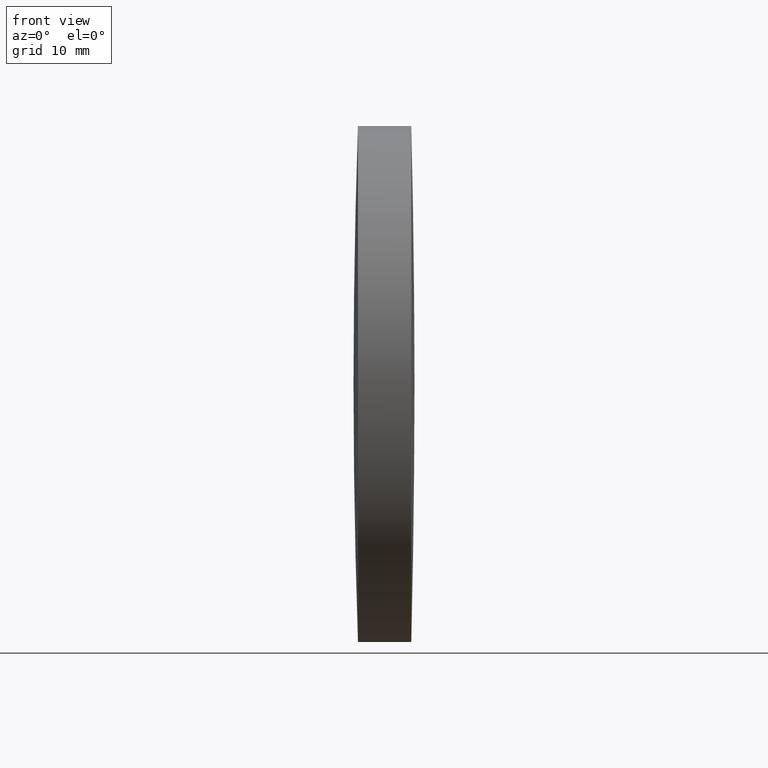
[diagram: clean part render]
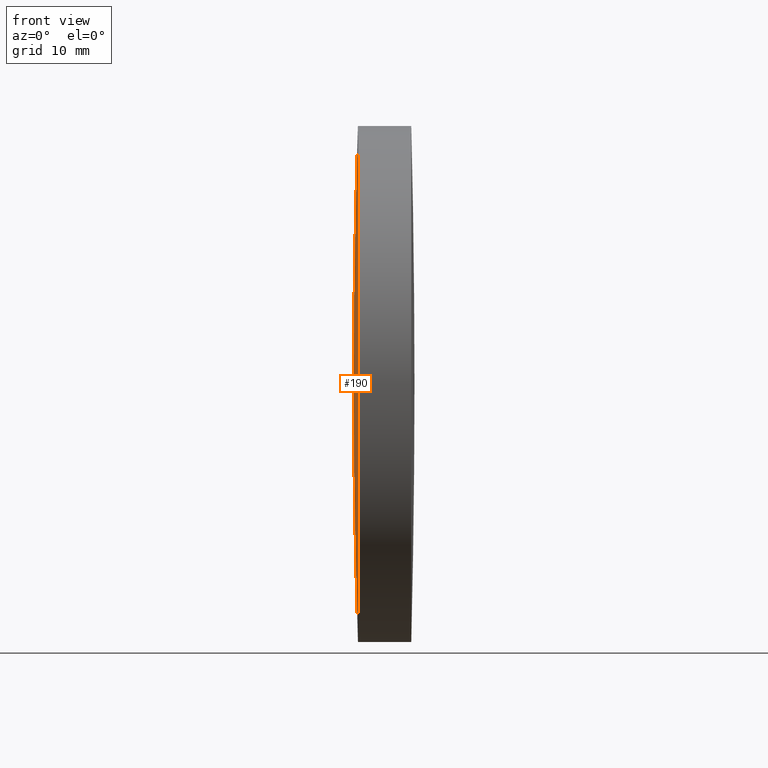
[diagram: same view with one face highlighted and labeled with its STEP entity id]
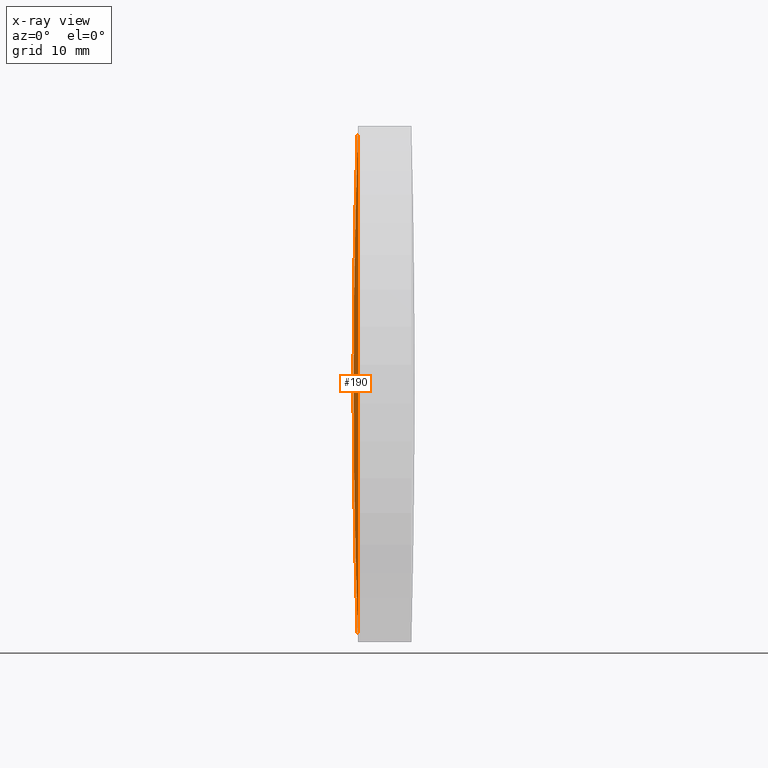
[diagram: x-ray of the same camera — body ghosted, the highlighted face saturated]
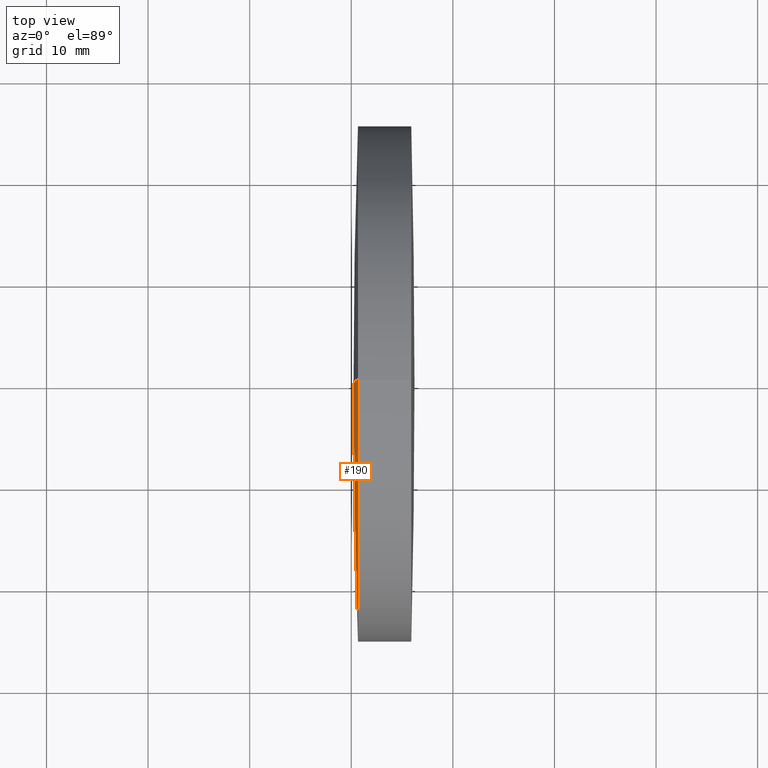
[diagram: same view with one face highlighted and labeled with its STEP entity id]
A machine part, front view. The second image highlights one B-rep face of the part: STEP entity #190.
The next image is the same camera in x-ray: the body ghosted, the highlighted face saturated — about 0% of this face is hidden behind the body in this view.
A second angle (top view) of the same face is appended — the face is thin or edge-on in the first view.
In plain terms, the highlighted spherical surface has radius 738.5 mm.
Its self-contained STEP definition (entity closure, byte-faithful):
#6 = CIRCLE ( 'NONE', #135, 738.4999999999998900 ) ;
#7 = AXIS2_PLACEMENT_3D ( 'NONE', #17, #173, #337 ) ;
#17 = CARTESIAN_POINT ( 'NONE',  ( 1348.721575906123500, 0.0000000000000000000, -2.385224689797379100E-012 ) ) ;
#43 = CARTESIAN_POINT ( 'NONE',  ( 610.6585094951291200, 3.110602869834124200E-015, -25.40000000000113200 ) ) ;
#45 = DIRECTION ( 'NONE',  ( -1.000000000000000000, -0.0000000000000000000, -0.0000000000000000000 ) ) ;
#69 = FACE_OUTER_BOUND ( 'NONE', #258, .T. ) ;
#72 = DIRECTION ( 'NONE',  ( 0.0000000000000000000, 0.0000000000000000000, 1.000000000000000000 ) ) ;
#78 = CARTESIAN_POINT ( 'NONE',  ( 1348.721575906123500, 0.0000000000000000000, -2.385224689797379100E-012 ) ) ;
#115 = ORIENTED_EDGE ( 'NONE', *, *, #175, .T. ) ;
#135 = AXIS2_PLACEMENT_3D ( 'NONE', #206, #344, #154 ) ;
#154 = DIRECTION ( 'NONE',  ( 0.0000000000000000000, 0.0000000000000000000, -1.000000000000000000 ) ) ;
#164 = AXIS2_PLACEMENT_3D ( 'NONE', #283, #45, #345 ) ;
#170 = CIRCLE ( 'NONE', #164, 25.39999999999922800 ) ;
#173 = DIRECTION ( 'NONE',  ( -0.0000000000000000000, 1.000000000000000000, 1.224646799147353200E-016 ) ) ;
#175 = EDGE_CURVE ( 'NONE', #248, #336, #6, .T. ) ;
#177 = CARTESIAN_POINT ( 'NONE',  ( 610.2215759061235800, 0.0000000000000000000, -2.340004606738863500E-012 ) ) ;
#190 = ADVANCED_FACE ( 'NONE', ( #69 ), #268, .T. ) ;
#206 = CARTESIAN_POINT ( 'NONE',  ( 1348.721575906123500, 0.0000000000000000000, -2.385224689797379100E-012 ) ) ;
#210 = CIRCLE ( 'NONE', #7, 738.4999999999998900 ) ;
#220 = ORIENTED_EDGE ( 'NONE', *, *, #293, .T. ) ;
#229 = CARTESIAN_POINT ( 'NONE',  ( 610.6585094951291200, 0.0000000000000000000, 25.39999999999875200 ) ) ;
#231 = EDGE_CURVE ( 'NONE', #280, #336, #210, .T. ) ;
#248 = VERTEX_POINT ( 'NONE', #229 ) ;
#258 = EDGE_LOOP ( 'NONE', ( #266, #220, #115 ) ) ;
#266 = ORIENTED_EDGE ( 'NONE', *, *, #231, .F. ) ;
#268 = SPHERICAL_SURFACE ( 'NONE', #300, 738.4999999999998900 ) ;
#280 = VERTEX_POINT ( 'NONE', #43 ) ;
#283 = CARTESIAN_POINT ( 'NONE',  ( 610.6585094951291200, 0.0000000000000000000, 0.0000000000000000000 ) ) ;
#293 = EDGE_CURVE ( 'NONE', #280, #248, #170, .T. ) ;
#300 = AXIS2_PLACEMENT_3D ( 'NONE', #78, #314, #72 ) ;
#314 = DIRECTION ( 'NONE',  ( 0.0000000000000000000, 1.000000000000000000, 0.0000000000000000000 ) ) ;
#336 = VERTEX_POINT ( 'NONE', #177 ) ;
#337 = DIRECTION ( 'NONE',  ( 0.0000000000000000000, -1.224646799147353200E-016, 1.000000000000000000 ) ) ;
#344 = DIRECTION ( 'NONE',  ( 0.0000000000000000000, -1.000000000000000000, 0.0000000000000000000 ) ) ;
#345 = DIRECTION ( 'NONE',  ( 0.0000000000000000000, 0.0000000000000000000, 1.000000000000000000 ) ) ;